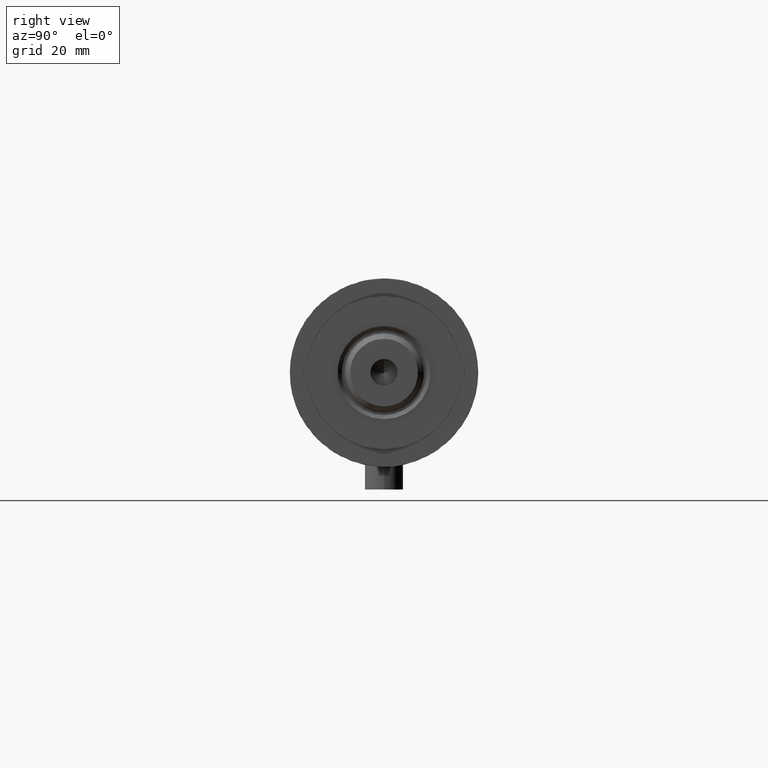
[diagram: clean part render]
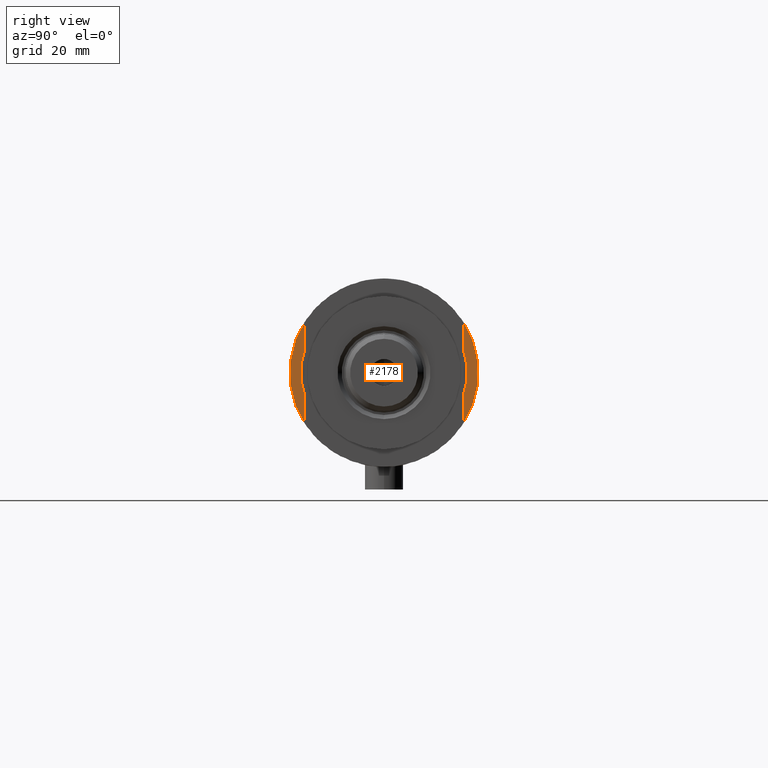
[diagram: same view with one face highlighted and labeled with its STEP entity id]
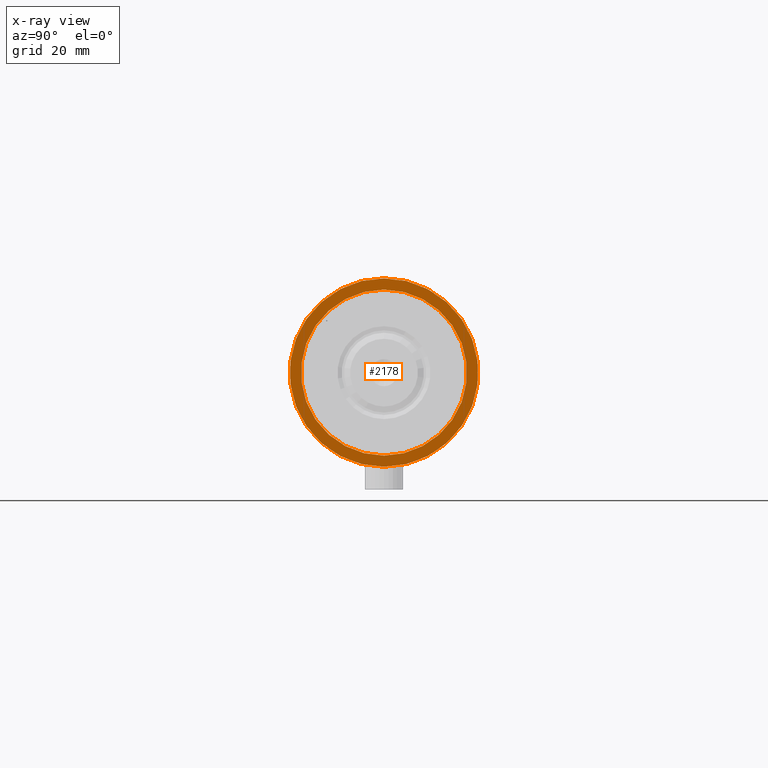
[diagram: x-ray of the same camera — body ghosted, the highlighted face saturated]
A machine part, right view. The second image highlights one B-rep face of the part: STEP entity #2178.
The next image is the same camera in x-ray: the body ghosted, the highlighted face saturated — about 0% of this face is hidden behind the body in this view.
In plain terms, the highlighted planar face has unit normal (-1, -0, 0).
Its self-contained STEP definition (entity closure, byte-faithful):
#63 = EDGE_LOOP ( 'NONE', ( #1426, #3951 ) ) ;
#199 = DIRECTION ( 'NONE',  ( -1.000000000000000000, 0.000000000000000000, 0.000000000000000000 ) ) ;
#287 = ORIENTED_EDGE ( 'NONE', *, *, #367, .F. ) ;
#301 = EDGE_CURVE ( 'NONE', #3559, #2596, #2486, .T. ) ;
#367 = EDGE_CURVE ( 'NONE', #1257, #1345, #529, .T. ) ;
#529 = CIRCLE ( 'NONE', #2044, 26.00000000000000355 ) ;
#677 = CARTESIAN_POINT ( 'NONE',  ( -29.50000000000000355, 3.612708057484692393E-15, -70.09999999999999432 ) ) ;
#779 = ORIENTED_EDGE ( 'NONE', *, *, #2454, .F. ) ;
#894 = AXIS2_PLACEMENT_3D ( 'NONE', #2444, #3142, #2137 ) ;
#914 = CARTESIAN_POINT ( 'NONE',  ( 0.000000000000000000, 0.000000000000000000, -70.09999999999999432 ) ) ;
#1257 = VERTEX_POINT ( 'NONE', #3460 ) ;
#1345 = VERTEX_POINT ( 'NONE', #4431 ) ;
#1426 = ORIENTED_EDGE ( 'NONE', *, *, #301, .F. ) ;
#1455 = CARTESIAN_POINT ( 'NONE',  ( 0.000000000000000000, 0.000000000000000000, -70.09999999999999432 ) ) ;
#1680 = FACE_BOUND ( 'NONE', #3422, .T. ) ;
#1709 = FACE_OUTER_BOUND ( 'NONE', #63, .T. ) ;
#1836 = CIRCLE ( 'NONE', #3515, 29.50000000000000355 ) ;
#1887 = AXIS2_PLACEMENT_3D ( 'NONE', #3100, #2824, #4462 ) ;
#2044 = AXIS2_PLACEMENT_3D ( 'NONE', #914, #3910, #2904 ) ;
#2137 = DIRECTION ( 'NONE',  ( 1.000000000000000000, 0.000000000000000000, 0.000000000000000000 ) ) ;
#2178 = ADVANCED_FACE ( 'NONE', ( #1680, #1709 ), #3795, .F. ) ;
#2304 = DIRECTION ( 'NONE',  ( 0.000000000000000000, 0.000000000000000000, 1.000000000000000000 ) ) ;
#2444 = CARTESIAN_POINT ( 'NONE',  ( 0.000000000000000000, 0.000000000000000000, -70.09999999999999432 ) ) ;
#2454 = EDGE_CURVE ( 'NONE', #1345, #1257, #3143, .T. ) ;
#2486 = CIRCLE ( 'NONE', #894, 29.50000000000000355 ) ;
#2561 = AXIS2_PLACEMENT_3D ( 'NONE', #1455, #3003, #199 ) ;
#2596 = VERTEX_POINT ( 'NONE', #677 ) ;
#2661 = DIRECTION ( 'NONE',  ( 1.000000000000000000, 0.000000000000000000, 0.000000000000000000 ) ) ;
#2824 = DIRECTION ( 'NONE',  ( 0.000000000000000000, 0.000000000000000000, 1.000000000000000000 ) ) ;
#2904 = DIRECTION ( 'NONE',  ( -1.000000000000000000, 0.000000000000000000, 0.000000000000000000 ) ) ;
#3003 = DIRECTION ( 'NONE',  ( 0.000000000000000000, 0.000000000000000000, -1.000000000000000000 ) ) ;
#3100 = CARTESIAN_POINT ( 'NONE',  ( 0.000000000000000000, 0.000000000000000000, -70.09999999999999432 ) ) ;
#3142 = DIRECTION ( 'NONE',  ( 0.000000000000000000, 0.000000000000000000, 1.000000000000000000 ) ) ;
#3143 = CIRCLE ( 'NONE', #2561, 26.00000000000000355 ) ;
#3422 = EDGE_LOOP ( 'NONE', ( #287, #779 ) ) ;
#3460 = CARTESIAN_POINT ( 'NONE',  ( -26.00000000000000355, 0.000000000000000000, -70.09999999999999432 ) ) ;
#3515 = AXIS2_PLACEMENT_3D ( 'NONE', #4347, #2304, #2661 ) ;
#3559 = VERTEX_POINT ( 'NONE', #3688 ) ;
#3688 = CARTESIAN_POINT ( 'NONE',  ( 29.50000000000000355, 0.000000000000000000, -70.09999999999999432 ) ) ;
#3795 = PLANE ( 'NONE',  #1887 ) ;
#3910 = DIRECTION ( 'NONE',  ( 0.000000000000000000, 0.000000000000000000, -1.000000000000000000 ) ) ;
#3951 = ORIENTED_EDGE ( 'NONE', *, *, #4469, .F. ) ;
#4347 = CARTESIAN_POINT ( 'NONE',  ( 0.000000000000000000, 0.000000000000000000, -70.09999999999999432 ) ) ;
#4431 = CARTESIAN_POINT ( 'NONE',  ( 26.00000000000000355, 3.184081677783118585E-15, -70.09999999999999432 ) ) ;
#4462 = DIRECTION ( 'NONE',  ( 1.000000000000000000, 0.000000000000000000, -0.000000000000000000 ) ) ;
#4469 = EDGE_CURVE ( 'NONE', #2596, #3559, #1836, .T. ) ;